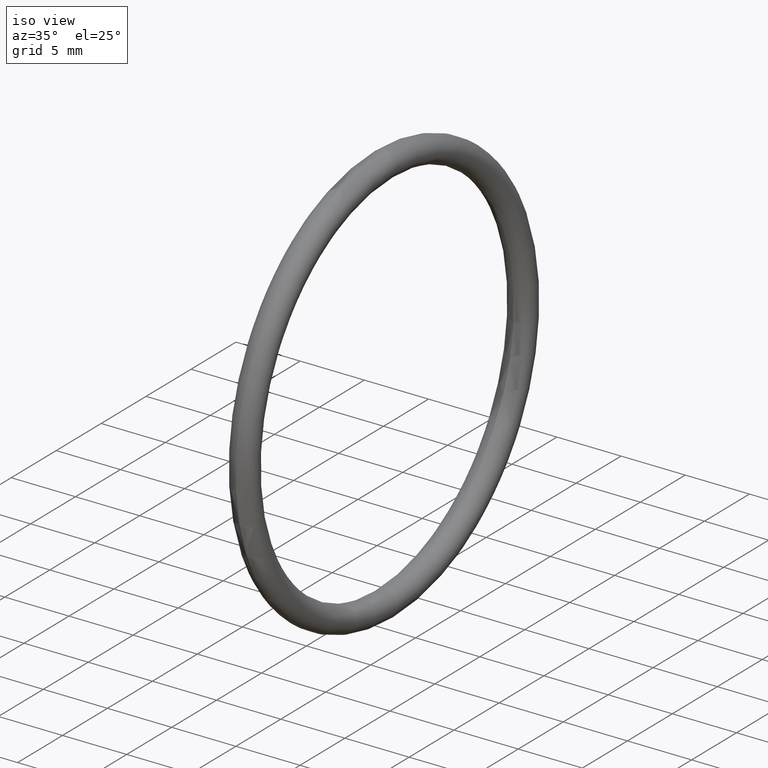
[diagram: clean part render]
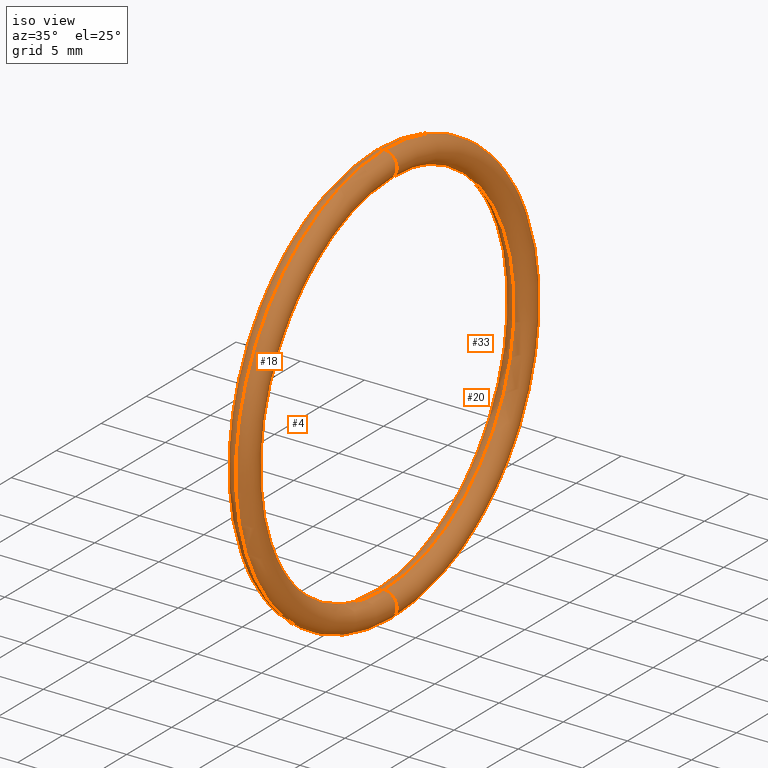
[diagram: same view with one multi-face feature highlighted, each face labeled with its STEP entity id]
A machine part, iso view. The highlighted faces form ONE feature: a constant-radius fillet chain: 4 tangent blend faces with common blend radius 1.016 mm. The faces share edges in the B-rep.
Their STEP definitions:
[1] entity #18 (Torus):
#8 = ORIENTED_EDGE ( 'NONE', *, *, #49, .F. ) ;
#9 = VERTEX_POINT ( 'NONE', #191 ) ;
#11 = EDGE_LOOP ( 'NONE', ( #8, #19, #36, #34 ) ) ;
#15 = VERTEX_POINT ( 'NONE', #190 ) ;
#18 = ADVANCED_FACE ( 'NONE', ( #189 ), #186, .T. ) ;
#19 = ORIENTED_EDGE ( 'NONE', *, *, #35, .T. ) ;
#21 = VERTEX_POINT ( 'NONE', #177 ) ;
#34 = ORIENTED_EDGE ( 'NONE', *, *, #37, .F. ) ;
#35 = EDGE_CURVE ( 'NONE', #9, #21, #146, .T. ) ;
#36 = ORIENTED_EDGE ( 'NONE', *, *, #39, .T. ) ;
#37 = EDGE_CURVE ( 'NONE', #15, #38, #141, .T. ) ;
#38 = VERTEX_POINT ( 'NONE', #136 ) ;
#39 = EDGE_CURVE ( 'NONE', #21, #38, #135, .T. ) ;
#49 = EDGE_CURVE ( 'NONE', #9, #15, #130, .T. ) ;
#126 = DIRECTION ( 'NONE',  ( 0.0000000000000000000, -1.224646799147354900E-016, 1.000000000000000000 ) ) ;
#127 = DIRECTION ( 'NONE',  ( 0.0000000000000000000, 1.000000000000000000, 1.224646799147353200E-016 ) ) ;
#128 = CARTESIAN_POINT ( 'NONE',  ( 0.1000000000000000900, 7.470345474798854000E-017, -0.6099999999999998800 ) ) ;
#129 = AXIS2_PLACEMENT_3D ( 'NONE', #128, #127, #126 ) ;
#130 = CIRCLE ( 'NONE', #129, 0.03999999999999998000 ) ;
#131 = DIRECTION ( 'NONE',  ( 0.0000000000000000000, 0.0000000000000000000, -1.000000000000000000 ) ) ;
#132 = DIRECTION ( 'NONE',  ( 0.0000000000000000000, -1.000000000000000000, 0.0000000000000000000 ) ) ;
#133 = CARTESIAN_POINT ( 'NONE',  ( 0.1000000000000000900, 0.0000000000000000000, 0.6099999999999998800 ) ) ;
#134 = AXIS2_PLACEMENT_3D ( 'NONE', #133, #132, #131 ) ;
#135 = CIRCLE ( 'NONE', #134, 0.03999999999999998000 ) ;
#136 = CARTESIAN_POINT ( 'NONE',  ( 0.1000000000000000900, 0.0000000000000000000, 0.5699999999999999500 ) ) ;
#137 = DIRECTION ( 'NONE',  ( 0.0000000000000000000, 0.0000000000000000000, 1.000000000000000000 ) ) ;
#138 = DIRECTION ( 'NONE',  ( -1.000000000000000000, 0.0000000000000000000, 0.0000000000000000000 ) ) ;
#139 = CARTESIAN_POINT ( 'NONE',  ( 0.1000000000000000900, 0.0000000000000000000, 0.0000000000000000000 ) ) ;
#140 = AXIS2_PLACEMENT_3D ( 'NONE', #139, #138, #137 ) ;
#141 = CIRCLE ( 'NONE', #140, 0.5699999999999999500 ) ;
#142 = DIRECTION ( 'NONE',  ( 0.0000000000000000000, 0.0000000000000000000, 1.000000000000000000 ) ) ;
#143 = DIRECTION ( 'NONE',  ( -1.000000000000000000, 0.0000000000000000000, 0.0000000000000000000 ) ) ;
#144 = CARTESIAN_POINT ( 'NONE',  ( 0.1000000000000000900, 0.0000000000000000000, 0.0000000000000000000 ) ) ;
#145 = AXIS2_PLACEMENT_3D ( 'NONE', #144, #143, #142 ) ;
#146 = CIRCLE ( 'NONE', #145, 0.6499999999999999100 ) ;
#177 = CARTESIAN_POINT ( 'NONE',  ( 0.1000000000000000900, 0.0000000000000000000, 0.6499999999999999100 ) ) ;
#183 = DIRECTION ( 'NONE',  ( 0.0000000000000000000, 0.0000000000000000000, 1.000000000000000000 ) ) ;
#184 = DIRECTION ( 'NONE',  ( -1.000000000000000000, 0.0000000000000000000, 0.0000000000000000000 ) ) ;
#185 = AXIS2_PLACEMENT_3D ( 'NONE', #188, #184, #183 ) ;
#186 = TOROIDAL_SURFACE ( 'NONE', #185, 0.6099999999999998800, 0.04000000000000000100 ) ;
#188 = CARTESIAN_POINT ( 'NONE',  ( 0.1000000000000000900, 0.0000000000000000000, 0.0000000000000000000 ) ) ;
#189 = FACE_OUTER_BOUND ( 'NONE', #11, .T. ) ;
#190 = CARTESIAN_POINT ( 'NONE',  ( 0.1000000000000000900, 6.980486755139912600E-017, -0.5699999999999999500 ) ) ;
#191 = CARTESIAN_POINT ( 'NONE',  ( 0.1000000000000000900, 7.960204194457794200E-017, -0.6499999999999999100 ) ) ;
[2] entity #4 (Torus):
#2 = ORIENTED_EDGE ( 'NONE', *, *, #35, .F. ) ;
#3 = EDGE_LOOP ( 'NONE', ( #2, #6, #23, #7 ) ) ;
#4 = ADVANCED_FACE ( 'NONE', ( #48 ), #41, .T. ) ;
#5 = EDGE_CURVE ( 'NONE', #15, #9, #196, .T. ) ;
#6 = ORIENTED_EDGE ( 'NONE', *, *, #5, .F. ) ;
#7 = ORIENTED_EDGE ( 'NONE', *, *, #28, .T. ) ;
#9 = VERTEX_POINT ( 'NONE', #191 ) ;
#14 = DIRECTION ( 'NONE',  ( -1.000000000000000000, 0.0000000000000000000, 0.0000000000000000000 ) ) ;
#15 = VERTEX_POINT ( 'NONE', #190 ) ;
#16 = DIRECTION ( 'NONE',  ( 0.0000000000000000000, 0.0000000000000000000, 1.000000000000000000 ) ) ;
#21 = VERTEX_POINT ( 'NONE', #177 ) ;
#23 = ORIENTED_EDGE ( 'NONE', *, *, #37, .T. ) ;
#28 = EDGE_CURVE ( 'NONE', #38, #21, #171, .T. ) ;
#35 = EDGE_CURVE ( 'NONE', #9, #21, #146, .T. ) ;
#37 = EDGE_CURVE ( 'NONE', #15, #38, #141, .T. ) ;
#38 = VERTEX_POINT ( 'NONE', #136 ) ;
#40 = AXIS2_PLACEMENT_3D ( 'NONE', #42, #14, #16 ) ;
#41 = TOROIDAL_SURFACE ( 'NONE', #40, 0.6099999999999998800, 0.04000000000000000100 ) ;
#42 = CARTESIAN_POINT ( 'NONE',  ( 0.1000000000000000900, 0.0000000000000000000, 0.0000000000000000000 ) ) ;
#48 = FACE_OUTER_BOUND ( 'NONE', #3, .T. ) ;
#136 = CARTESIAN_POINT ( 'NONE',  ( 0.1000000000000000900, 0.0000000000000000000, 0.5699999999999999500 ) ) ;
#137 = DIRECTION ( 'NONE',  ( 0.0000000000000000000, 0.0000000000000000000, 1.000000000000000000 ) ) ;
#138 = DIRECTION ( 'NONE',  ( -1.000000000000000000, 0.0000000000000000000, 0.0000000000000000000 ) ) ;
#139 = CARTESIAN_POINT ( 'NONE',  ( 0.1000000000000000900, 0.0000000000000000000, 0.0000000000000000000 ) ) ;
#140 = AXIS2_PLACEMENT_3D ( 'NONE', #139, #138, #137 ) ;
#141 = CIRCLE ( 'NONE', #140, 0.5699999999999999500 ) ;
#142 = DIRECTION ( 'NONE',  ( 0.0000000000000000000, 0.0000000000000000000, 1.000000000000000000 ) ) ;
#143 = DIRECTION ( 'NONE',  ( -1.000000000000000000, 0.0000000000000000000, 0.0000000000000000000 ) ) ;
#144 = CARTESIAN_POINT ( 'NONE',  ( 0.1000000000000000900, 0.0000000000000000000, 0.0000000000000000000 ) ) ;
#145 = AXIS2_PLACEMENT_3D ( 'NONE', #144, #143, #142 ) ;
#146 = CIRCLE ( 'NONE', #145, 0.6499999999999999100 ) ;
#167 = DIRECTION ( 'NONE',  ( 0.0000000000000000000, 0.0000000000000000000, -1.000000000000000000 ) ) ;
#168 = DIRECTION ( 'NONE',  ( 0.0000000000000000000, -1.000000000000000000, 0.0000000000000000000 ) ) ;
#169 = CARTESIAN_POINT ( 'NONE',  ( 0.1000000000000000900, 0.0000000000000000000, 0.6099999999999998800 ) ) ;
#170 = AXIS2_PLACEMENT_3D ( 'NONE', #169, #168, #167 ) ;
#171 = CIRCLE ( 'NONE', #170, 0.03999999999999998000 ) ;
#177 = CARTESIAN_POINT ( 'NONE',  ( 0.1000000000000000900, 0.0000000000000000000, 0.6499999999999999100 ) ) ;
#190 = CARTESIAN_POINT ( 'NONE',  ( 0.1000000000000000900, 6.980486755139912600E-017, -0.5699999999999999500 ) ) ;
#191 = CARTESIAN_POINT ( 'NONE',  ( 0.1000000000000000900, 7.960204194457794200E-017, -0.6499999999999999100 ) ) ;
#192 = DIRECTION ( 'NONE',  ( 0.0000000000000000000, -1.224646799147354900E-016, 1.000000000000000000 ) ) ;
#193 = DIRECTION ( 'NONE',  ( 0.0000000000000000000, 1.000000000000000000, 1.224646799147353200E-016 ) ) ;
#194 = CARTESIAN_POINT ( 'NONE',  ( 0.1000000000000000900, 7.470345474798854000E-017, -0.6099999999999998800 ) ) ;
#195 = AXIS2_PLACEMENT_3D ( 'NONE', #194, #193, #192 ) ;
#196 = CIRCLE ( 'NONE', #195, 0.03999999999999998000 ) ;
[3] entity #33 (Torus):
#1 = EDGE_CURVE ( 'NONE', #21, #9, #47, .T. ) ;
#5 = EDGE_CURVE ( 'NONE', #15, #9, #196, .T. ) ;
#9 = VERTEX_POINT ( 'NONE', #191 ) ;
#15 = VERTEX_POINT ( 'NONE', #190 ) ;
#21 = VERTEX_POINT ( 'NONE', #177 ) ;
#22 = ORIENTED_EDGE ( 'NONE', *, *, #5, .T. ) ;
#25 = EDGE_CURVE ( 'NONE', #38, #15, #176, .T. ) ;
#27 = ORIENTED_EDGE ( 'NONE', *, *, #1, .F. ) ;
#28 = EDGE_CURVE ( 'NONE', #38, #21, #171, .T. ) ;
#29 = ORIENTED_EDGE ( 'NONE', *, *, #25, .T. ) ;
#30 = EDGE_LOOP ( 'NONE', ( #27, #31, #29, #22 ) ) ;
#31 = ORIENTED_EDGE ( 'NONE', *, *, #28, .F. ) ;
#33 = ADVANCED_FACE ( 'NONE', ( #166 ), #150, .T. ) ;
#38 = VERTEX_POINT ( 'NONE', #136 ) ;
#43 = DIRECTION ( 'NONE',  ( 0.0000000000000000000, 0.0000000000000000000, 1.000000000000000000 ) ) ;
#44 = DIRECTION ( 'NONE',  ( -1.000000000000000000, 0.0000000000000000000, 0.0000000000000000000 ) ) ;
#45 = CARTESIAN_POINT ( 'NONE',  ( 0.1000000000000000900, 0.0000000000000000000, 0.0000000000000000000 ) ) ;
#46 = AXIS2_PLACEMENT_3D ( 'NONE', #45, #44, #43 ) ;
#47 = CIRCLE ( 'NONE', #46, 0.6499999999999999100 ) ;
#136 = CARTESIAN_POINT ( 'NONE',  ( 0.1000000000000000900, 0.0000000000000000000, 0.5699999999999999500 ) ) ;
#147 = DIRECTION ( 'NONE',  ( 0.0000000000000000000, 0.0000000000000000000, 1.000000000000000000 ) ) ;
#148 = DIRECTION ( 'NONE',  ( -1.000000000000000000, 0.0000000000000000000, 0.0000000000000000000 ) ) ;
#149 = AXIS2_PLACEMENT_3D ( 'NONE', #165, #148, #147 ) ;
#150 = TOROIDAL_SURFACE ( 'NONE', #149, 0.6099999999999998800, 0.04000000000000000100 ) ;
#165 = CARTESIAN_POINT ( 'NONE',  ( 0.1000000000000000900, 0.0000000000000000000, 0.0000000000000000000 ) ) ;
#166 = FACE_OUTER_BOUND ( 'NONE', #30, .T. ) ;
#167 = DIRECTION ( 'NONE',  ( 0.0000000000000000000, 0.0000000000000000000, -1.000000000000000000 ) ) ;
#168 = DIRECTION ( 'NONE',  ( 0.0000000000000000000, -1.000000000000000000, 0.0000000000000000000 ) ) ;
#169 = CARTESIAN_POINT ( 'NONE',  ( 0.1000000000000000900, 0.0000000000000000000, 0.6099999999999998800 ) ) ;
#170 = AXIS2_PLACEMENT_3D ( 'NONE', #169, #168, #167 ) ;
#171 = CIRCLE ( 'NONE', #170, 0.03999999999999998000 ) ;
#172 = DIRECTION ( 'NONE',  ( 0.0000000000000000000, 0.0000000000000000000, 1.000000000000000000 ) ) ;
#173 = DIRECTION ( 'NONE',  ( -1.000000000000000000, 0.0000000000000000000, 0.0000000000000000000 ) ) ;
#174 = CARTESIAN_POINT ( 'NONE',  ( 0.1000000000000000900, 0.0000000000000000000, 0.0000000000000000000 ) ) ;
#175 = AXIS2_PLACEMENT_3D ( 'NONE', #174, #173, #172 ) ;
#176 = CIRCLE ( 'NONE', #175, 0.5699999999999999500 ) ;
#177 = CARTESIAN_POINT ( 'NONE',  ( 0.1000000000000000900, 0.0000000000000000000, 0.6499999999999999100 ) ) ;
#190 = CARTESIAN_POINT ( 'NONE',  ( 0.1000000000000000900, 6.980486755139912600E-017, -0.5699999999999999500 ) ) ;
#191 = CARTESIAN_POINT ( 'NONE',  ( 0.1000000000000000900, 7.960204194457794200E-017, -0.6499999999999999100 ) ) ;
#192 = DIRECTION ( 'NONE',  ( 0.0000000000000000000, -1.224646799147354900E-016, 1.000000000000000000 ) ) ;
#193 = DIRECTION ( 'NONE',  ( 0.0000000000000000000, 1.000000000000000000, 1.224646799147353200E-016 ) ) ;
#194 = CARTESIAN_POINT ( 'NONE',  ( 0.1000000000000000900, 7.470345474798854000E-017, -0.6099999999999998800 ) ) ;
#195 = AXIS2_PLACEMENT_3D ( 'NONE', #194, #193, #192 ) ;
#196 = CIRCLE ( 'NONE', #195, 0.03999999999999998000 ) ;
[4] entity #20 (Torus):
#1 = EDGE_CURVE ( 'NONE', #21, #9, #47, .T. ) ;
#9 = VERTEX_POINT ( 'NONE', #191 ) ;
#12 = ORIENTED_EDGE ( 'NONE', *, *, #39, .F. ) ;
#13 = EDGE_LOOP ( 'NONE', ( #12, #24, #32, #26 ) ) ;
#15 = VERTEX_POINT ( 'NONE', #190 ) ;
#20 = ADVANCED_FACE ( 'NONE', ( #187 ), #182, .T. ) ;
#21 = VERTEX_POINT ( 'NONE', #177 ) ;
#24 = ORIENTED_EDGE ( 'NONE', *, *, #1, .T. ) ;
#25 = EDGE_CURVE ( 'NONE', #38, #15, #176, .T. ) ;
#26 = ORIENTED_EDGE ( 'NONE', *, *, #25, .F. ) ;
#32 = ORIENTED_EDGE ( 'NONE', *, *, #49, .T. ) ;
#38 = VERTEX_POINT ( 'NONE', #136 ) ;
#39 = EDGE_CURVE ( 'NONE', #21, #38, #135, .T. ) ;
#43 = DIRECTION ( 'NONE',  ( 0.0000000000000000000, 0.0000000000000000000, 1.000000000000000000 ) ) ;
#44 = DIRECTION ( 'NONE',  ( -1.000000000000000000, 0.0000000000000000000, 0.0000000000000000000 ) ) ;
#45 = CARTESIAN_POINT ( 'NONE',  ( 0.1000000000000000900, 0.0000000000000000000, 0.0000000000000000000 ) ) ;
#46 = AXIS2_PLACEMENT_3D ( 'NONE', #45, #44, #43 ) ;
#47 = CIRCLE ( 'NONE', #46, 0.6499999999999999100 ) ;
#49 = EDGE_CURVE ( 'NONE', #9, #15, #130, .T. ) ;
#126 = DIRECTION ( 'NONE',  ( 0.0000000000000000000, -1.224646799147354900E-016, 1.000000000000000000 ) ) ;
#127 = DIRECTION ( 'NONE',  ( 0.0000000000000000000, 1.000000000000000000, 1.224646799147353200E-016 ) ) ;
#128 = CARTESIAN_POINT ( 'NONE',  ( 0.1000000000000000900, 7.470345474798854000E-017, -0.6099999999999998800 ) ) ;
#129 = AXIS2_PLACEMENT_3D ( 'NONE', #128, #127, #126 ) ;
#130 = CIRCLE ( 'NONE', #129, 0.03999999999999998000 ) ;
#131 = DIRECTION ( 'NONE',  ( 0.0000000000000000000, 0.0000000000000000000, -1.000000000000000000 ) ) ;
#132 = DIRECTION ( 'NONE',  ( 0.0000000000000000000, -1.000000000000000000, 0.0000000000000000000 ) ) ;
#133 = CARTESIAN_POINT ( 'NONE',  ( 0.1000000000000000900, 0.0000000000000000000, 0.6099999999999998800 ) ) ;
#134 = AXIS2_PLACEMENT_3D ( 'NONE', #133, #132, #131 ) ;
#135 = CIRCLE ( 'NONE', #134, 0.03999999999999998000 ) ;
#136 = CARTESIAN_POINT ( 'NONE',  ( 0.1000000000000000900, 0.0000000000000000000, 0.5699999999999999500 ) ) ;
#172 = DIRECTION ( 'NONE',  ( 0.0000000000000000000, 0.0000000000000000000, 1.000000000000000000 ) ) ;
#173 = DIRECTION ( 'NONE',  ( -1.000000000000000000, 0.0000000000000000000, 0.0000000000000000000 ) ) ;
#174 = CARTESIAN_POINT ( 'NONE',  ( 0.1000000000000000900, 0.0000000000000000000, 0.0000000000000000000 ) ) ;
#175 = AXIS2_PLACEMENT_3D ( 'NONE', #174, #173, #172 ) ;
#176 = CIRCLE ( 'NONE', #175, 0.5699999999999999500 ) ;
#177 = CARTESIAN_POINT ( 'NONE',  ( 0.1000000000000000900, 0.0000000000000000000, 0.6499999999999999100 ) ) ;
#178 = DIRECTION ( 'NONE',  ( 0.0000000000000000000, 0.0000000000000000000, 1.000000000000000000 ) ) ;
#179 = DIRECTION ( 'NONE',  ( -1.000000000000000000, 0.0000000000000000000, 0.0000000000000000000 ) ) ;
#180 = CARTESIAN_POINT ( 'NONE',  ( 0.1000000000000000900, 0.0000000000000000000, 0.0000000000000000000 ) ) ;
#181 = AXIS2_PLACEMENT_3D ( 'NONE', #180, #179, #178 ) ;
#182 = TOROIDAL_SURFACE ( 'NONE', #181, 0.6099999999999998800, 0.04000000000000000100 ) ;
#187 = FACE_OUTER_BOUND ( 'NONE', #13, .T. ) ;
#190 = CARTESIAN_POINT ( 'NONE',  ( 0.1000000000000000900, 6.980486755139912600E-017, -0.5699999999999999500 ) ) ;
#191 = CARTESIAN_POINT ( 'NONE',  ( 0.1000000000000000900, 7.960204194457794200E-017, -0.6499999999999999100 ) ) ;